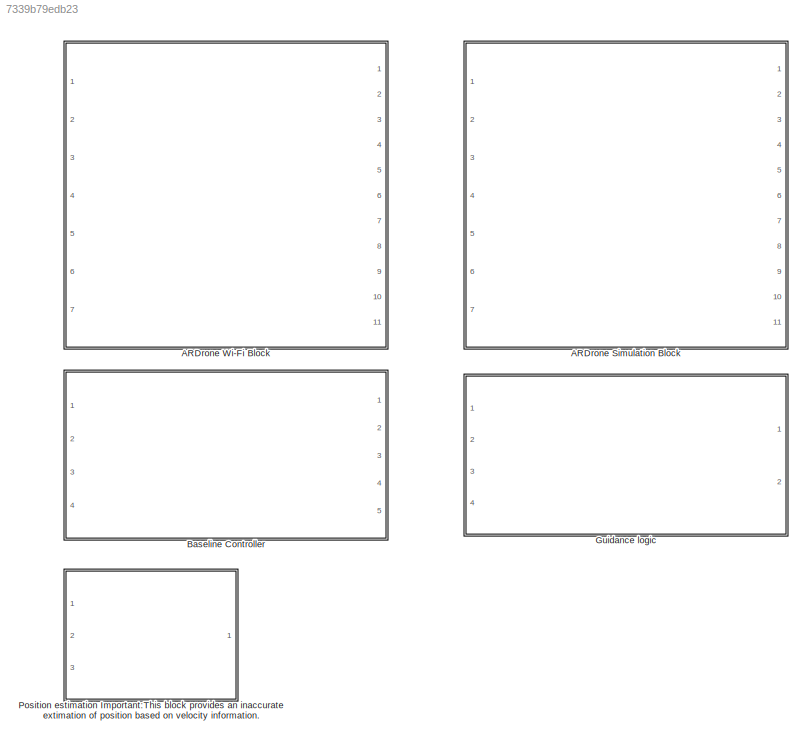
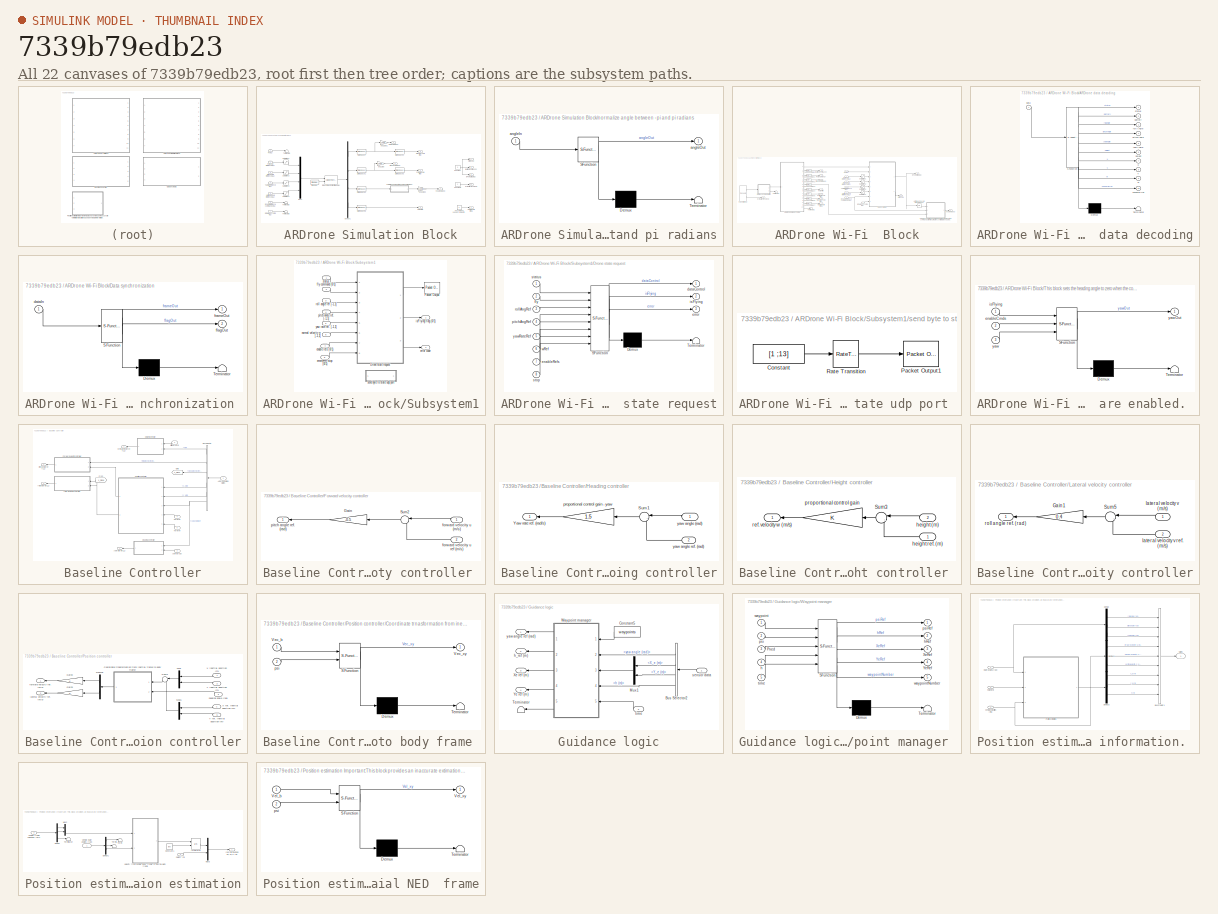
[diagram: thumbnail index - all 22 canvases of the model, root first then tree order]
MODEL slx_7339b79edb23
KIND library
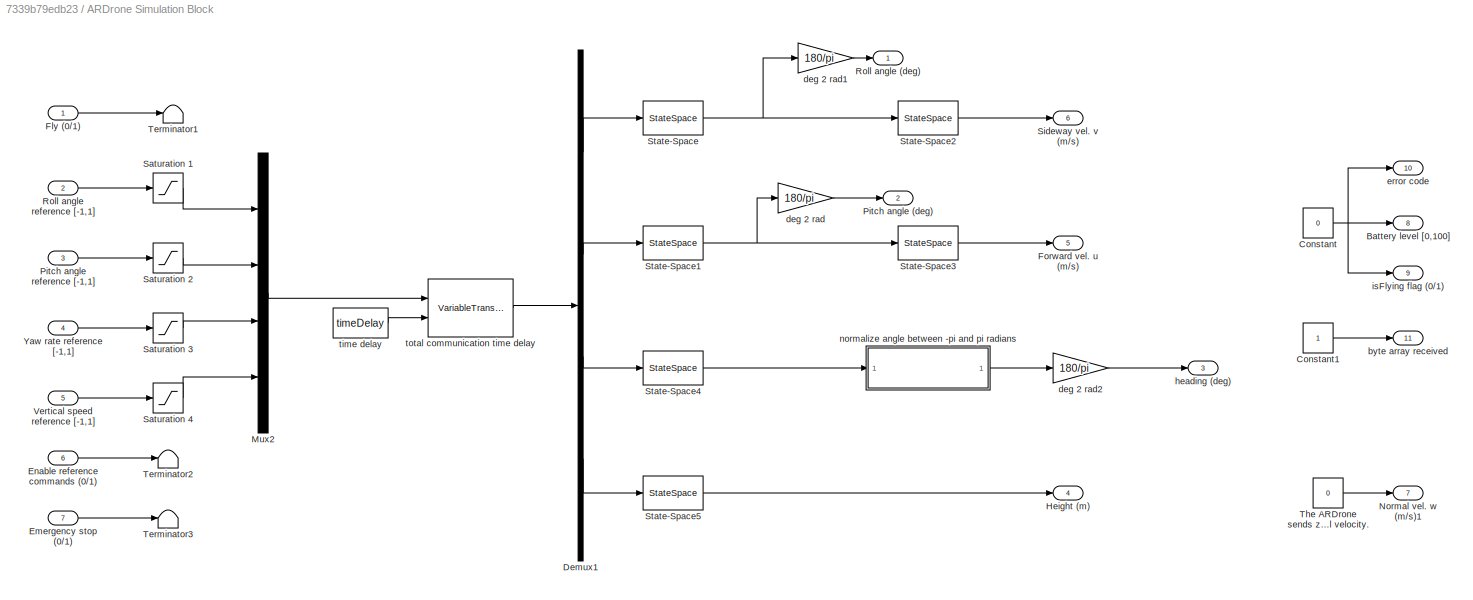
BLOCK [SubSystem] ARDrone Simulation Block
  FunctionWithSeparateData = off
  MaskHideContents = off
  MinAlgLoopOccurrences = off
  Opaque = off
  Ports = [7, 11]
  PropExecContextOutsideSubsystem = off
  RTWSystemCode = Auto
  RequestExecContextInheritance = off
BLOCK [Outport] ARDrone Simulation Block/Battery level [0,100]
  IconDisplay = Port number
  Port = 8
BLOCK [Constant] ARDrone Simulation Block/Constant
  Value = 0
BLOCK [Constant] ARDrone Simulation Block/Constant1
BLOCK [Demux] ARDrone Simulation Block/Demux1
  DisplayOption = bar
  Ports = [1, 4]
BLOCK [Inport] ARDrone Simulation Block/Emergency stop (0//1)
  IconDisplay = Port number
  Port = 7
BLOCK [Inport] ARDrone Simulation Block/Enable reference commands (0//1)
  IconDisplay = Port number
  Port = 6
BLOCK [Inport] ARDrone Simulation Block/Fly (0//1)
  IconDisplay = Port number
BLOCK [Outport] ARDrone Simulation Block/Forward vel. u (m//s)
  IconDisplay = Port number
  Port = 5
BLOCK [Outport] ARDrone Simulation Block/Height (m)
  IconDisplay = Port number
  Port = 4
BLOCK [Mux] ARDrone Simulation Block/Mux2
  DisplayOption = bar
  Ports = [4, 1]
BLOCK [Outport] ARDrone Simulation Block/Normal vel. w (m//s)1
  IconDisplay = Port number
  Port = 7
BLOCK [Outport] ARDrone Simulation Block/Pitch angle (deg)
  IconDisplay = Port number
  Port = 2
BLOCK [Inport] ARDrone Simulation Block/Pitch angle reference [-1,1]
  IconDisplay = Port number
  Port = 3
BLOCK [Outport] ARDrone Simulation Block/Roll angle (deg)
  IconDisplay = Port number
BLOCK [Inport] ARDrone Simulation Block/Roll angle reference [-1,1]
  IconDisplay = Port number
  Port = 2
BLOCK [Saturate] ARDrone Simulation Block/Saturation 1
  InputPortMap = u0
  LowerLimit = -1
  Ports = [1, 1]
  UpperLimit = 1
BLOCK [Saturate] ARDrone Simulation Block/Saturation 2
  InputPortMap = u0
  LowerLimit = -1
  Ports = [1, 1]
  UpperLimit = 1
BLOCK [Saturate] ARDrone Simulation Block/Saturation 3
  InputPortMap = u0
  LowerLimit = -1
  Ports = [1, 1]
  UpperLimit = 1
BLOCK [Saturate] ARDrone Simulation Block/Saturation 4
  InputPortMap = u0
  LowerLimit = -1
  Ports = [1, 1]
  UpperLimit = 1
BLOCK [Outport] ARDrone Simulation Block/Sideway vel. v (m//s)
  IconDisplay = Port number
  Port = 6
BLOCK [StateSpace] ARDrone Simulation Block/State-Space
  A = ssRoll.a
  B = ssRoll.b
  C = ssRoll.c
  D = ssRoll.d
  Ports = [1, 1]
  X0 = 0
BLOCK [StateSpace] ARDrone Simulation Block/State-Space1
  A = ssPitch.a
  B = ssPitch.b
  C = ssPitch.c
  D = ssPitch.d
  Ports = [1, 1]
  X0 = 0
BLOCK [StateSpace] ARDrone Simulation Block/State-Space2
  A = ssRoll2V.a
  B = ssRoll2V.b
  C = ssRoll2V.c
  D = ssRoll2V.d
  Ports = [1, 1]
  X0 = 0
BLOCK [StateSpace] ARDrone Simulation Block/State-Space3
  A = ssPitch2U.a
  B = ssPitch2U.b
  C = ssPitch2U.c
  D = ssPitch2U.d
  Ports = [1, 1]
  X0 = 0
BLOCK [StateSpace] ARDrone Simulation Block/State-Space4
  A = ssYaw.a
  B = ssYaw.b
  C = ssYaw.c
  D = ssYaw.d
  Ports = [1, 1]
  X0 = 0
BLOCK [StateSpace] ARDrone Simulation Block/State-Space5
  A = ssH.a
  B = ssH.b
  C = ssH.c
  D = ssH.d
  Ports = [1, 1]
  X0 = 0
BLOCK [Terminator] ARDrone Simulation Block/Terminator1
BLOCK [Terminator] ARDrone Simulation Block/Terminator2
BLOCK [Terminator] ARDrone Simulation Block/Terminator3
BLOCK [Constant] ARDrone Simulation Block/The ARDrone sends zero for the vertical velocity. 
  Value = 0
BLOCK [Inport] ARDrone Simulation Block/Vertical speed reference [-1,1]
  IconDisplay = Port number
  Port = 5
BLOCK [Inport] ARDrone Simulation Block/Yaw rate reference [-1,1]
  IconDisplay = Port number
  Port = 4
BLOCK [Outport] ARDrone Simulation Block/byte array received
  IconDisplay = Port number
  Port = 11
BLOCK [Gain] ARDrone Simulation Block/deg 2 rad
  Gain = 180/pi
  OutDataTypeStr = Inherit: Inherit via internal rule
  ParamDataTypeStr = Inherit: Inherit via internal rule
  SaturateOnIntegerOverflow = off
BLOCK [Gain] ARDrone Simulation Block/deg 2 rad1
  Gain = 180/pi
  OutDataTypeStr = Inherit: Inherit via internal rule
  ParamDataTypeStr = Inherit: Inherit via internal rule
  SaturateOnIntegerOverflow = off
BLOCK [Gain] ARDrone Simulation Block/deg 2 rad2
  Gain = 180/pi
  OutDataTypeStr = Inherit: Inherit via internal rule
  ParamDataTypeStr = Inherit: Inherit via internal rule
  SaturateOnIntegerOverflow = off
BLOCK [Outport] ARDrone Simulation Block/error code
  IconDisplay = Port number
  Port = 10
BLOCK [Outport] ARDrone Simulation Block/heading  (deg)
  IconDisplay = Port number
  Port = 3
BLOCK [Outport] ARDrone Simulation Block/isFlying flag (0//1)
  IconDisplay = Port number
  Port = 9
BLOCK [SubSystem] ARDrone Simulation Block/normalize angle between -pi and pi radians
  ErrorFcn = Stateflow.Translate.translate
  FunctionWithSeparateData = off
  MaskHideContents = off
  MinAlgLoopOccurrences = off
  Opaque = off
  PermitHierarchicalResolution = ExplicitOnly
  Ports = [1, 1]
  PropExecContextOutsideSubsystem = off
  RTWSystemCode = Auto
  RequestExecContextInheritance = off
  SFBlockType = MATLAB Function
  TreatAsAtomicUnit = on
BLOCK [Demux] ARDrone Simulation Block/normalize angle between -pi and pi radians/ Demux 
  Outputs = 1
  Ports = [1, 1]
BLOCK [S-Function] ARDrone Simulation Block/normalize angle between -pi and pi radians/ SFunction 
  EnableBusSupport = on
  FunctionName = sf_sfun
  PortCounts = [1 2]
  Ports = [1, 2]
  Tag = Stateflow S-Function ARBlocks 5
BLOCK [Terminator] ARDrone Simulation Block/normalize angle between -pi and pi radians/ Terminator 
BLOCK [Inport] ARDrone Simulation Block/normalize angle between -pi and pi radians/angleIn
  IconDisplay = Port number
BLOCK [Outport] ARDrone Simulation Block/normalize angle between -pi and pi radians/angleOut
  IconDisplay = Port number
BLOCK [Constant] ARDrone Simulation Block/time delay
  Value = timeDelay
BLOCK [VariableTransportDelay] ARDrone Simulation Block/total communication time delay
  InitialOutput = [0 0 0 0]
  MaximumDelay = 10
  MaximumPoints = 4096
  Ports = [2, 1]
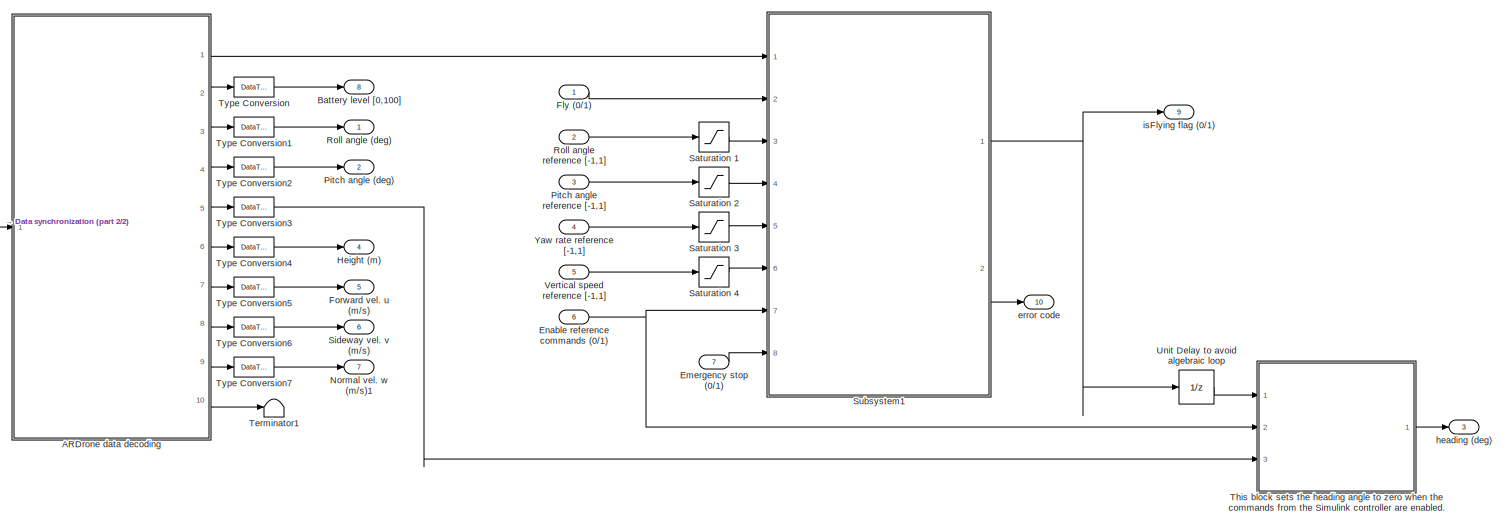
[diagram: ARDrone Wi-Fi  Block - part 1/2, most of the canvas]
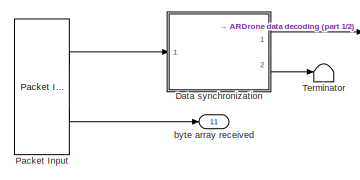
[diagram: ARDrone Wi-Fi  Block - part 2/2, middle left region]
BLOCK [SubSystem] ARDrone Wi-Fi  Block
  FunctionWithSeparateData = off
  MaskHideContents = off
  MinAlgLoopOccurrences = off
  Opaque = off
  Ports = [7, 11]
  PropExecContextOutsideSubsystem = off
  RTWSystemCode = Auto
  RequestExecContextInheritance = off
BLOCK [SubSystem] ARDrone Wi-Fi  Block/ARDrone data decoding
  ErrorFcn = Stateflow.Translate.translate
  FunctionWithSeparateData = off
  MaskHideContents = off
  MinAlgLoopOccurrences = off
  Opaque = off
  PermitHierarchicalResolution = ExplicitOnly
  Ports = [1, 10]
  PropExecContextOutsideSubsystem = off
  RTWSystemCode = Auto
  RequestExecContextInheritance = off
  SFBlockType = MATLAB Function
  TreatAsAtomicUnit = on
BLOCK [Demux] ARDrone Wi-Fi  Block/ARDrone data decoding/ Demux 
  Outputs = 1
  Ports = [1, 1]
BLOCK [S-Function] ARDrone Wi-Fi  Block/ARDrone data decoding/ SFunction 
  EnableBusSupport = on
  FunctionName = sf_sfun
  PortCounts = [1 11]
  Ports = [1, 11]
  Tag = Stateflow S-Function ARBlocks 2
BLOCK [Terminator] ARDrone Wi-Fi  Block/ARDrone data decoding/ Terminator 
BLOCK [Outport] ARDrone Wi-Fi  Block/ARDrone data decoding/battery
  IconDisplay = Port number
  Port = 2
BLOCK [Outport] ARDrone Wi-Fi  Block/ARDrone data decoding/cksumError
  IconDisplay = Port number
  Port = 10
BLOCK [Inport] ARDrone Wi-Fi  Block/ARDrone data decoding/data
  IconDisplay = Port number
BLOCK [Outport] ARDrone Wi-Fi  Block/ARDrone data decoding/height
  IconDisplay = Port number
  Port = 6
BLOCK [Outport] ARDrone Wi-Fi  Block/ARDrone data decoding/pitchAngle
  IconDisplay = Port number
  Port = 4
BLOCK [Outport] ARDrone Wi-Fi  Block/ARDrone data decoding/rollAngle
  IconDisplay = Port number
  Port = 3
BLOCK [Outport] ARDrone Wi-Fi  Block/ARDrone data decoding/status
  IconDisplay = Port number
BLOCK [Outport] ARDrone Wi-Fi  Block/ARDrone data decoding/u
  IconDisplay = Port number
  Port = 7
BLOCK [Outport] ARDrone Wi-Fi  Block/ARDrone data decoding/v
  IconDisplay = Port number
  Port = 8
BLOCK [Outport] ARDrone Wi-Fi  Block/ARDrone data decoding/w
  IconDisplay = Port number
  Port = 9
BLOCK [Outport] ARDrone Wi-Fi  Block/ARDrone data decoding/yawAngle
  IconDisplay = Port number
  Port = 5
BLOCK [Outport] ARDrone Wi-Fi  Block/Battery level [0,100]
  IconDisplay = Port number
  Port = 8
BLOCK [SubSystem] ARDrone Wi-Fi  Block/Data synchronization 
  ErrorFcn = Stateflow.Translate.translate
  FunctionWithSeparateData = off
  MaskHideContents = off
  MinAlgLoopOccurrences = off
  Opaque = off
  PermitHierarchicalResolution = ExplicitOnly
  Ports = [1, 2]
  PropExecContextOutsideSubsystem = off
  RTWSystemCode = Auto
  RequestExecContextInheritance = off
  SFBlockType = MATLAB Function
  TreatAsAtomicUnit = on
BLOCK [Demux] ARDrone Wi-Fi  Block/Data synchronization / Demux 
  Outputs = 1
  Ports = [1, 1]
BLOCK [S-Function] ARDrone Wi-Fi  Block/Data synchronization / SFunction 
  EnableBusSupport = on
  FunctionName = sf_sfun
  PortCounts = [1 3]
  Ports = [1, 3]
  Tag = Stateflow S-Function ARBlocks 3
BLOCK [Terminator] ARDrone Wi-Fi  Block/Data synchronization / Terminator 
BLOCK [Inport] ARDrone Wi-Fi  Block/Data synchronization /dataIn
  IconDisplay = Port number
BLOCK [Outport] ARDrone Wi-Fi  Block/Data synchronization /flagOut
  IconDisplay = Port number
  Port = 2
BLOCK [Outport] ARDrone Wi-Fi  Block/Data synchronization /frameOut
  IconDisplay = Port number
BLOCK [Inport] ARDrone Wi-Fi  Block/Emergency stop (0//1)
  IconDisplay = Port number
  Port = 7
BLOCK [Inport] ARDrone Wi-Fi  Block/Enable reference commands (0//1)
  IconDisplay = Port number
  Port = 6
BLOCK [Inport] ARDrone Wi-Fi  Block/Fly (0//1)
  IconDisplay = Port number
BLOCK [Outport] ARDrone Wi-Fi  Block/Forward vel. u (m//s)
  IconDisplay = Port number
  Port = 5
BLOCK [Outport] ARDrone Wi-Fi  Block/Height (m)
  IconDisplay = Port number
  Port = 4
BLOCK [Outport] ARDrone Wi-Fi  Block/Normal vel. w (m//s)1
  IconDisplay = Port number
  Port = 7
BLOCK [Reference] ARDrone Wi-Fi  Block/Packet Input  REF=rtwinlib/Packet Input
  AttributesFormatString = Standard Devices\nUDP Protocol [15B2h]
  ByteOrder = 1
  DataTypes = '500*uint8'
  DrvAddress = 5554
  DrvName = Standard_Devices/UDP_Protocol
  DrvOptions = [3232235777 5554]
  MaxMissedTicks = 1
  PacketID = 1
  PacketSize = 500
  Ports = [0, 2]
  SampleTime = sampleTime
  ShowError = off
  ShowMissedTicks = off
  ShowReady = on
  ShowTimestamp = off
  SourceBlock = rtwinlib/Packet Input
  SourceType = RTWin Packet Input
  YieldWhenWaiting = off
BLOCK [Outport] ARDrone Wi-Fi  Block/Pitch angle (deg)
  IconDisplay = Port number
  Port = 2
BLOCK [Inport] ARDrone Wi-Fi  Block/Pitch angle reference [-1,1]
  IconDisplay = Port number
  Port = 3
BLOCK [Outport] ARDrone Wi-Fi  Block/Roll angle (deg)
  IconDisplay = Port number
BLOCK [Inport] ARDrone Wi-Fi  Block/Roll angle reference [-1,1]
  IconDisplay = Port number
  Port = 2
BLOCK [Saturate] ARDrone Wi-Fi  Block/Saturation 1
  InputPortMap = u0
  LowerLimit = -1
  Ports = [1, 1]
  UpperLimit = 1
BLOCK [Saturate] ARDrone Wi-Fi  Block/Saturation 2
  InputPortMap = u0
  LowerLimit = -1
  Ports = [1, 1]
  UpperLimit = 1
BLOCK [Saturate] ARDrone Wi-Fi  Block/Saturation 3
  InputPortMap = u0
  LowerLimit = -1
  Ports = [1, 1]
  UpperLimit = 1
BLOCK [Saturate] ARDrone Wi-Fi  Block/Saturation 4
  InputPortMap = u0
  LowerLimit = -1
  Ports = [1, 1]
  UpperLimit = 1
BLOCK [Outport] ARDrone Wi-Fi  Block/Sideway vel. v (m//s)
  IconDisplay = Port number
  Port = 6
BLOCK [SubSystem] ARDrone Wi-Fi  Block/Subsystem1
  FunctionWithSeparateData = off
  MaskHideContents = off
  MinAlgLoopOccurrences = off
  Opaque = off
  Ports = [8, 2]
  PropExecContextOutsideSubsystem = off
  RTWSystemCode = Auto
  RequestExecContextInheritance = off
BLOCK [SubSystem] ARDrone Wi-Fi  Block/Subsystem1/Drone state request
  ErrorFcn = Stateflow.Translate.translate
  FunctionWithSeparateData = off
  MaskHideContents = off
  MinAlgLoopOccurrences = off
  Opaque = off
  PermitHierarchicalResolution = ExplicitOnly
  Ports = [8, 3]
  PropExecContextOutsideSubsystem = off
  RTWSystemCode = Auto
  RequestExecContextInheritance = off
  SFBlockType = MATLAB Function
  TreatAsAtomicUnit = on
BLOCK [Demux] ARDrone Wi-Fi  Block/Subsystem1/Drone state request/ Demux 
  Outputs = 1
  Ports = [1, 1]
BLOCK [S-Function] ARDrone Wi-Fi  Block/Subsystem1/Drone state request/ SFunction 
  EnableBusSupport = on
  FunctionName = sf_sfun
  PortCounts = [8 4]
  Ports = [8, 4]
  Tag = Stateflow S-Function ARBlocks 1
BLOCK [Terminator] ARDrone Wi-Fi  Block/Subsystem1/Drone state request/ Terminator 
BLOCK [Outport] ARDrone Wi-Fi  Block/Subsystem1/Drone state request/dataControl
  IconDisplay = Port number
BLOCK [Inport] ARDrone Wi-Fi  Block/Subsystem1/Drone state request/enableRefs
  IconDisplay = Port number
  Port = 7
BLOCK [Outport] ARDrone Wi-Fi  Block/Subsystem1/Drone state request/error
  IconDisplay = Port number
  Port = 3
BLOCK [Inport] ARDrone Wi-Fi  Block/Subsystem1/Drone state request/fly
  IconDisplay = Port number
  Port = 2
BLOCK [Outport] ARDrone Wi-Fi  Block/Subsystem1/Drone state request/isFlying
  IconDisplay = Port number
  Port = 2
BLOCK [Inport] ARDrone Wi-Fi  Block/Subsystem1/Drone state request/pitchAngRef
  IconDisplay = Port number
  Port = 4
BLOCK [Inport] ARDrone Wi-Fi  Block/Subsystem1/Drone state request/rollAngRef
  IconDisplay = Port number
  Port = 3
BLOCK [Inport] ARDrone Wi-Fi  Block/Subsystem1/Drone state request/status
  IconDisplay = Port number
BLOCK [Inport] ARDrone Wi-Fi  Block/Subsystem1/Drone state request/stop
  IconDisplay = Port number
  Port = 8
BLOCK [Inport] ARDrone Wi-Fi  Block/Subsystem1/Drone state request/wRef
  IconDisplay = Port number
  Port = 6
BLOCK [Inport] ARDrone Wi-Fi  Block/Subsystem1/Drone state request/yawRateRef
  IconDisplay = Port number
  Port = 5
BLOCK [Reference] ARDrone Wi-Fi  Block/Subsystem1/Packet Output  REF=rtwinlib/Packet Output
  AttributesFormatString = Standard Devices\nUDP Protocol [15B4h]
  ByteOrder = 1
  DataTypes = '150*uint8'
  DrvAddress = 5556
  DrvName = Standard_Devices/UDP_Protocol
  DrvOptions = [3232235777 5556]
  FinalValue = []
  InitialValue = []
  MaxMissedTicks = 10
  PacketID = 1
  PacketSize = 150
  Ports = [1]
  SampleTime = -1
  ShowError = off
  ShowMissedTicks = off
  ShowReady = off
  SourceBlock = rtwinlib/Packet Output
  SourceType = RTWin Packet Output
  YieldWhenWaiting = off
BLOCK [Inport] ARDrone Wi-Fi  Block/Subsystem1/emergency stop (0//1)
  IconDisplay = Port number
  Port = 8
BLOCK [Inport] ARDrone Wi-Fi  Block/Subsystem1/enable refs (0//1)
  IconDisplay = Port number
  Port = 7
BLOCK [Outport] ARDrone Wi-Fi  Block/Subsystem1/error code
  IconDisplay = Port number
  Port = 2
BLOCK [Inport] ARDrone Wi-Fi  Block/Subsystem1/fly command (0//1)
  IconDisplay = Port number
  Port = 2
BLOCK [Outport] ARDrone Wi-Fi  Block/Subsystem1/isFlying flag (0//1)
  IconDisplay = Port number
BLOCK [Inport] ARDrone Wi-Fi  Block/Subsystem1/normal velocity w [-1,1]
  IconDisplay = Port number
  Port = 6
BLOCK [Inport] ARDrone Wi-Fi  Block/Subsystem1/pitch angle ref. [-1,1]
  IconDisplay = Port number
  Port = 4
BLOCK [Inport] ARDrone Wi-Fi  Block/Subsystem1/roll angle ref [-1,1]
  IconDisplay = Port number
  Port = 3
BLOCK [SubSystem] ARDrone Wi-Fi  Block/Subsystem1/send byte to state udp port 
  FunctionWithSeparateData = off
  MaskHideContents = off
  MinAlgLoopOccurrences = off
  Opaque = off
  Ports = []
  PropExecContextOutsideSubsystem = off
  RTWSystemCode = Auto
  RequestExecContextInheritance = off
BLOCK [Constant] ARDrone Wi-Fi  Block/Subsystem1/send byte to state udp port /Constant
  OutDataTypeStr = uint8
  Value = [1 ;13]
BLOCK [Reference] ARDrone Wi-Fi  Block/Subsystem1/send byte to state udp port /Packet Output1  REF=rtwinlib/Packet Output
  AttributesFormatString = Standard Devices\nUDP Protocol [15B2h]
  ByteOrder = 1
  DataTypes = '2*uint8'
  DrvAddress = 5554
  DrvName = Standard_Devices/UDP_Protocol
  DrvOptions = [3232235777 5554]
  FinalValue = []
  InitialValue = []
  MaxMissedTicks = 10
  PacketID = 1
  PacketSize = 2
  Ports = [1]
  SampleTime = sampleTime*10
  ShowError = off
  ShowMissedTicks = off
  ShowReady = off
  SourceBlock = rtwinlib/Packet Output
  SourceType = RTWin Packet Output
  YieldWhenWaiting = off
BLOCK [RateTransition] ARDrone Wi-Fi  Block/Subsystem1/send byte to state udp port /Rate Transition
  OutPortSampleTime = sampleTime*10
BLOCK [Inport] ARDrone Wi-Fi  Block/Subsystem1/status
  IconDisplay = Port number
BLOCK [Inport] ARDrone Wi-Fi  Block/Subsystem1/yaw rate ref. [-1,1]
  IconDisplay = Port number
  Port = 5
BLOCK [Terminator] ARDrone Wi-Fi  Block/Terminator
BLOCK [Terminator] ARDrone Wi-Fi  Block/Terminator1
BLOCK [SubSystem] ARDrone Wi-Fi  Block/This block sets the heading angle to zero when the commands from the Simulink controller are enabled. 
  ErrorFcn = Stateflow.Translate.translate
  FunctionWithSeparateData = off
  MaskHideContents = off
  MinAlgLoopOccurrences = off
  Opaque = off
  PermitHierarchicalResolution = ExplicitOnly
  Ports = [3, 1]
  PropExecContextOutsideSubsystem = off
  RTWSystemCode = Auto
  RequestExecContextInheritance = off
  SFBlockType = MATLAB Function
  TreatAsAtomicUnit = on
BLOCK [Demux] ARDrone Wi-Fi  Block/This block sets the heading angle to zero when the commands from the Simulink controller are enabled. / Demux 
  Outputs = 1
  Ports = [1, 1]
BLOCK [S-Function] ARDrone Wi-Fi  Block/This block sets the heading angle to zero when the commands from the Simulink controller are enabled. / SFunction 
  EnableBusSupport = on
  FunctionName = sf_sfun
  PortCounts = [3 2]
  Ports = [3, 2]
  Tag = Stateflow S-Function ARBlocks 4
BLOCK [Terminator] ARDrone Wi-Fi  Block/This block sets the heading angle to zero when the commands from the Simulink controller are enabled. / Terminator 
BLOCK [Inport] ARDrone Wi-Fi  Block/This block sets the heading angle to zero when the commands from the Simulink controller are enabled. /enableCmds
  IconDisplay = Port number
  Port = 2
BLOCK [Inport] ARDrone Wi-Fi  Block/This block sets the heading angle to zero when the commands from the Simulink controller are enabled. /isFlying
  IconDisplay = Port number
BLOCK [Inport] ARDrone Wi-Fi  Block/This block sets the heading angle to zero when the commands from the Simulink controller are enabled. /yaw
  IconDisplay = Port number
  Port = 3
BLOCK [Outport] ARDrone Wi-Fi  Block/This block sets the heading angle to zero when the commands from the Simulink controller are enabled. /yawOut
  IconDisplay = Port number
BLOCK [DataTypeConversion] ARDrone Wi-Fi  Block/Type Conversion
  OutDataTypeStr = double
  RndMeth = Floor
  SaturateOnIntegerOverflow = off
BLOCK [DataTypeConversion] ARDrone Wi-Fi  Block/Type Conversion1
  OutDataTypeStr = double
  RndMeth = Floor
  SaturateOnIntegerOverflow = off
BLOCK [DataTypeConversion] ARDrone Wi-Fi  Block/Type Conversion2
  OutDataTypeStr = double
  RndMeth = Floor
  SaturateOnIntegerOverflow = off
BLOCK [DataTypeConversion] ARDrone Wi-Fi  Block/Type Conversion3
  OutDataTypeStr = double
  RndMeth = Floor
  SaturateOnIntegerOverflow = off
BLOCK [DataTypeConversion] ARDrone Wi-Fi  Block/Type Conversion4
  OutDataTypeStr = double
  RndMeth = Floor
  SaturateOnIntegerOverflow = off
BLOCK [DataTypeConversion] ARDrone Wi-Fi  Block/Type Conversion5
  OutDataTypeStr = double
  RndMeth = Floor
  SaturateOnIntegerOverflow = off
BLOCK [DataTypeConversion] ARDrone Wi-Fi  Block/Type Conversion6
  OutDataTypeStr = double
  RndMeth = Floor
  SaturateOnIntegerOverflow = off
BLOCK [DataTypeConversion] ARDrone Wi-Fi  Block/Type Conversion7
  OutDataTypeStr = double
  RndMeth = Floor
  SaturateOnIntegerOverflow = off
BLOCK [UnitDelay] ARDrone Wi-Fi  Block/Unit Delay to avoid algebraic loop
  InputProcessing = Elements as channels (sample based)
  SampleTime = -1
BLOCK [Inport] ARDrone Wi-Fi  Block/Vertical speed reference [-1,1]
  IconDisplay = Port number
  Port = 5
BLOCK [Inport] ARDrone Wi-Fi  Block/Yaw rate reference [-1,1]
  IconDisplay = Port number
  Port = 4
BLOCK [Outport] ARDrone Wi-Fi  Block/byte array received
  IconDisplay = Port number
  Port = 11
BLOCK [Outport] ARDrone Wi-Fi  Block/error code
  IconDisplay = Port number
  Port = 10
BLOCK [Outport] ARDrone Wi-Fi  Block/heading  (deg)
  IconDisplay = Port number
  Port = 3
BLOCK [Outport] ARDrone Wi-Fi  Block/isFlying flag (0//1)
  IconDisplay = Port number
  Port = 9
BLOCK [SubSystem] Baseline Controller
  FunctionWithSeparateData = off
  MaskHideContents = off
  MinAlgLoopOccurrences = off
  Opaque = off
  Ports = [5, 4]
  PropExecContextOutsideSubsystem = off
  RTWSystemCode = Auto
  RequestExecContextInheritance = off
BLOCK [Inport] Baseline Controller/ARDrone states  states 
  IconDisplay = Port number
BLOCK [BusSelector] Baseline Controller/Bus Selector
  OutputSignals = h (m),forward velocity- u (m/s),sideward velocity - v (m/s),X_e (m),Y_e (m),yaw angle (rad)
  Ports = [1, 6]
BLOCK [SubSystem] Baseline Controller/Forward velocity controller 
  FunctionWithSeparateData = off
  MaskHideContents = off
  MinAlgLoopOccurrences = off
  Opaque = off
  Ports = [2, 1]
  PropExecContextOutsideSubsystem = off
  RTWSystemCode = Auto
  RequestExecContextInheritance = off
BLOCK [Gain] Baseline Controller/Forward velocity controller /Gain
  Gain = -0.5
  OutDataTypeStr = Inherit: Inherit via internal rule
  ParamDataTypeStr = Inherit: Inherit via internal rule
  SaturateOnIntegerOverflow = off
BLOCK [Sum] Baseline Controller/Forward velocity controller /Sum2
  IconShape = round
  InputSameDT = off
  Inputs = |-+
  OutDataTypeStr = Inherit: Inherit via internal rule
  Ports = [2, 1]
  SaturateOnIntegerOverflow = off
BLOCK [Inport] Baseline Controller/Forward velocity controller /forward velocity u (m//s)
  IconDisplay = Port number
BLOCK [Inport] Baseline Controller/Forward velocity controller /forward velocity u ref (m//s)
  IconDisplay = Port number
  Port = 2
BLOCK [Outport] Baseline Controller/Forward velocity controller /pitch angle ref. (rad)
  IconDisplay = Port number
BLOCK [From] Baseline Controller/From
  GotoTag = v_meas
BLOCK [Goto] Baseline Controller/Goto
  GotoTag = v_meas
BLOCK [SubSystem] Baseline Controller/Heading controller
  FunctionWithSeparateData = off
  MaskHideContents = off
  MinAlgLoopOccurrences = off
  Opaque = off
  Ports = [2, 1]
  PropExecContextOutsideSubsystem = off
  RTWSystemCode = Auto
  RequestExecContextInheritance = off
BLOCK [Sum] Baseline Controller/Heading controller/Sum1
  IconShape = round
  InputSameDT = off
  Inputs = |-+
  OutDataTypeStr = Inherit: Inherit via internal rule
  Ports = [2, 1]
  SaturateOnIntegerOverflow = off
BLOCK [Outport] Baseline Controller/Heading controller/Yaw rate ref. (rad//s)
  IconDisplay = Port number
BLOCK [Gain] Baseline Controller/Heading controller/proportional control gain - yaw
  Gain = 1.5
  OutDataTypeStr = Inherit: Inherit via internal rule
  ParamDataTypeStr = Inherit: Inherit via internal rule
  SaturateOnIntegerOverflow = off
BLOCK [Inport] Baseline Controller/Heading controller/yaw angle (rad)
  IconDisplay = Port number
BLOCK [Inport] Baseline Controller/Heading controller/yaw angle ref. (rad)
  IconDisplay = Port number
  Port = 2
BLOCK [SubSystem] Baseline Controller/Height controller 
  FunctionWithSeparateData = off
  MaskHideContents = off
  MinAlgLoopOccurrences = off
  Opaque = off
  Ports = [2, 1]
  PropExecContextOutsideSubsystem = off
  RTWSystemCode = Auto
  RequestExecContextInheritance = off
BLOCK [Sum] Baseline Controller/Height controller /Sum3
  IconShape = round
  InputSameDT = off
  Inputs = |-+
  OutDataTypeStr = Inherit: Inherit via internal rule
  Ports = [2, 1]
  SaturateOnIntegerOverflow = off
BLOCK [Inport] Baseline Controller/Height controller /height (m)
  IconDisplay = Port number
  Port = 2
BLOCK [Inport] Baseline Controller/Height controller /height ref. (m)
  IconDisplay = Port number
BLOCK [Gain] Baseline Controller/Height controller /proportional control gain
  OutDataTypeStr = Inherit: Inherit via internal rule
  ParamDataTypeStr = Inherit: Inherit via internal rule
  SaturateOnIntegerOverflow = off
BLOCK [Outport] Baseline Controller/Height controller /ref. velocity w (m//s)
  IconDisplay = Port number
BLOCK [SubSystem] Baseline Controller/Lateral velocity controller
  FunctionWithSeparateData = off
  MaskHideContents = off
  MinAlgLoopOccurrences = off
  Opaque = off
  Ports = [2, 1]
  PropExecContextOutsideSubsystem = off
  RTWSystemCode = Auto
  RequestExecContextInheritance = off
BLOCK [Gain] Baseline Controller/Lateral velocity controller/Gain1
  Gain = 0.4
  OutDataTypeStr = Inherit: Inherit via internal rule
  ParamDataTypeStr = Inherit: Inherit via internal rule
  SaturateOnIntegerOverflow = off
BLOCK [Sum] Baseline Controller/Lateral velocity controller/Sum5
  IconShape = round
  InputSameDT = off
  Inputs = |-+
  OutDataTypeStr = Inherit: Inherit via internal rule
  Ports = [2, 1]
  SaturateOnIntegerOverflow = off
BLOCK [Inport] Baseline Controller/Lateral velocity controller/lateral velocity v (m//s)
  IconDisplay = Port number
BLOCK [Inport] Baseline Controller/Lateral velocity controller/lateral velocity v ref. (m//s)
  IconDisplay = Port number
  Port = 2
BLOCK [Outport] Baseline Controller/Lateral velocity controller/roll angle ref. (rad)
  IconDisplay = Port number
BLOCK [SubSystem] Baseline Controller/Position controller
  FunctionWithSeparateData = off
  MaskHideContents = off
  MinAlgLoopOccurrences = off
  Opaque = off
  Ports = [5, 2]
  PropExecContextOutsideSubsystem = off
  RTWSystemCode = Auto
  RequestExecContextInheritance = off
BLOCK [SubSystem] Baseline Controller/Position controller/Coordinate trnasformation from inertial frame to body frame 
  ErrorFcn = Stateflow.Translate.translate
  FunctionWithSeparateData = off
  MaskHideContents = off
  MinAlgLoopOccurrences = off
  Opaque = off
  PermitHierarchicalResolution = ExplicitOnly
  Ports = [2, 1]
  PropExecContextOutsideSubsystem = off
  RTWSystemCode = Auto
  RequestExecContextInheritance = off
  SFBlockType = MATLAB Function
  TreatAsAtomicUnit = on
BLOCK [Demux] Baseline Controller/Position controller/Coordinate trnasformation from inertial frame to body frame / Demux 
  Outputs = 1
  Ports = [1, 1]
BLOCK [S-Function] Baseline Controller/Position controller/Coordinate trnasformation from inertial frame to body frame / SFunction 
  EnableBusSupport = on
  FunctionName = sf_sfun
  PortCounts = [2 2]
  Ports = [2, 2]
  Tag = Stateflow S-Function ARBlocks 7
BLOCK [Terminator] Baseline Controller/Position controller/Coordinate trnasformation from inertial frame to body frame / Terminator 
BLOCK [Inport] Baseline Controller/Position controller/Coordinate trnasformation from inertial frame to body frame /Vec_b
  IconDisplay = Port number
BLOCK [Outport] Baseline Controller/Position controller/Coordinate trnasformation from inertial frame to body frame /Vec_xy
  IconDisplay = Port number
BLOCK [Inport] Baseline Controller/Position controller/Coordinate trnasformation from inertial frame to body frame /psi
  IconDisplay = Port number
  Port = 2
BLOCK [Demux] Baseline Controller/Position controller/Demux
  DisplayOption = bar
  Outputs = 2
  Ports = [1, 2]
BLOCK [Gain] Baseline Controller/Position controller/Gain2
  OutDataTypeStr = Inherit: Inherit via internal rule
  ParamDataTypeStr = Inherit: Inherit via internal rule
  SaturateOnIntegerOverflow = off
BLOCK [Gain] Baseline Controller/Position controller/Gain3
  OutDataTypeStr = Inherit: Inherit via internal rule
  ParamDataTypeStr = Inherit: Inherit via internal rule
  SaturateOnIntegerOverflow = off
BLOCK [Mux] Baseline Controller/Position controller/Mux
  DisplayOption = bar
  Inputs = 2
  Ports = [2, 1]
BLOCK [Mux] Baseline Controller/Position controller/Mux1
  DisplayOption = bar
  Inputs = 2
  Ports = [2, 1]
BLOCK [Sum] Baseline Controller/Position controller/Sum4
  IconShape = round
  InputSameDT = off
  Inputs = |-+
  OutDataTypeStr = Inherit: Inherit via internal rule
  Ports = [2, 1]
  SaturateOnIntegerOverflow = off
BLOCK [Inport] Baseline Controller/Position controller/X inertial position (m)
  IconDisplay = Port number
BLOCK [Inport] Baseline Controller/Position controller/X ref. inertial position (m)
  IconDisplay = Port number
  Port = 4
BLOCK [Inport] Baseline Controller/Position controller/Y inertial position (m)
  IconDisplay = Port number
  Port = 2
BLOCK [Inport] Baseline Controller/Position controller/Y ref. inertial position (m)
  IconDisplay = Port number
  Port = 5
BLOCK [Outport] Baseline Controller/Position controller/forward velocity ref. (m//s)
  IconDisplay = Port number
BLOCK [Inport] Baseline Controller/Position controller/heading angle (rad)
  IconDisplay = Port number
  Port = 3
BLOCK [Outport] Baseline Controller/Position controller/lateral velocity ref. (m//s)
  IconDisplay = Port number
  Port = 2
BLOCK [Inport] Baseline Controller/Xe ref (m)
  IconDisplay = Port number
  Port = 4
BLOCK [Inport] Baseline Controller/Ye ref (m)
  IconDisplay = Port number
  Port = 5
BLOCK [Inport] Baseline Controller/altitude ref. (m)
  IconDisplay = Port number
  Port = 3
BLOCK [Outport] Baseline Controller/pitch angle ref. [-1,1]
  IconDisplay = Port number
  Port = 3
BLOCK [Outport] Baseline Controller/roll angle ref. [-1,1]
  IconDisplay = Port number
  Port = 4
BLOCK [Outport] Baseline Controller/vertical velocity ref. [-1,1]
  IconDisplay = Port number
BLOCK [Outport] Baseline Controller/yaw rate ref [-1,1]
  IconDisplay = Port number
  Port = 2
BLOCK [Inport] Baseline Controller/yaw ref. (rad)
  IconDisplay = Port number
  Port = 2
BLOCK [SubSystem] Guidance logic
  FunctionWithSeparateData = off
  MaskHideContents = off
  MinAlgLoopOccurrences = off
  Opaque = off
  Ports = [2, 4]
  PropExecContextOutsideSubsystem = off
  RTWSystemCode = Auto
  RequestExecContextInheritance = off
BLOCK [BusSelector] Guidance logic/Bus Selector2
  OutputSignals = yaw angle (rad),X_e (m),Y_e (m),h (m)
  Ports = [1, 4]
BLOCK [Constant] Guidance logic/Constant5
  Value = waypoints
  VectorParams1D = off
BLOCK [Mux] Guidance logic/Mux1
  DisplayOption = bar
  Inputs = 2
  Ports = [2, 1]
BLOCK [Terminator] Guidance logic/Terminator
BLOCK [SubSystem] Guidance logic/Waypoint manager 
  ErrorFcn = Stateflow.Translate.translate
  FunctionWithSeparateData = off
  MaskHideContents = off
  MinAlgLoopOccurrences = off
  Opaque = off
  PermitHierarchicalResolution = ExplicitOnly
  Ports = [5, 5]
  PropExecContextOutsideSubsystem = off
  RTWSystemCode = Auto
  RequestExecContextInheritance = off
  SFBlockType = MATLAB Function
  TreatAsAtomicUnit = on
BLOCK [Demux] Guidance logic/Waypoint manager / Demux 
  Outputs = 1
  Ports = [1, 1]
BLOCK [S-Function] Guidance logic/Waypoint manager / SFunction 
  EnableBusSupport = on
  FunctionName = sf_sfun
  PortCounts = [5 6]
  Ports = [5, 6]
  Tag = Stateflow S-Function ARBlocks 9
BLOCK [Terminator] Guidance logic/Waypoint manager / Terminator 
BLOCK [Inport] Guidance logic/Waypoint manager /Pned
  IconDisplay = Port number
  Port = 3
BLOCK [Outport] Guidance logic/Waypoint manager /XeRef
  IconDisplay = Port number
  Port = 3
BLOCK [Outport] Guidance logic/Waypoint manager /YeRef
  IconDisplay = Port number
  Port = 4
BLOCK [Inport] Guidance logic/Waypoint manager /h
  IconDisplay = Port number
  Port = 4
BLOCK [Outport] Guidance logic/Waypoint manager /hRef
  IconDisplay = Port number
  Port = 2
BLOCK [Inport] Guidance logic/Waypoint manager /psi
  IconDisplay = Port number
  Port = 2
BLOCK [Outport] Guidance logic/Waypoint manager /psiRef
  IconDisplay = Port number
BLOCK [Inport] Guidance logic/Waypoint manager /time
  IconDisplay = Port number
  Port = 5
BLOCK [Inport] Guidance logic/Waypoint manager /waypoint
  IconDisplay = Port number
BLOCK [Outport] Guidance logic/Waypoint manager /waypointNumber
  IconDisplay = Port number
  Port = 5
BLOCK [Outport] Guidance logic/Xe ref (m)
  IconDisplay = Port number
  Port = 3
BLOCK [Outport] Guidance logic/Ye ref (m)
  IconDisplay = Port number
  Port = 4
BLOCK [Outport] Guidance logic/h_ref (m)
  IconDisplay = Port number
  Port = 2
BLOCK [Inport] Guidance logic/sensor data
  IconDisplay = Port number
BLOCK [Inport] Guidance logic/time
  IconDisplay = Port number
  Port = 2
BLOCK [Outport] Guidance logic/yaw angle ref (rad)
  IconDisplay = Port number
BLOCK [SubSystem] Position estimation Important:This block provides an inaccurate extimation of position based on  velocity information. 
  FunctionWithSeparateData = off
  MaskHideContents = off
  MinAlgLoopOccurrences = off
  Opaque = off
  Ports = [3, 1]
  PropExecContextOutsideSubsystem = off
  RTWSystemCode = Auto
  RequestExecContextInheritance = off
BLOCK [BusCreator] Position estimation Important:This block provides an inaccurate extimation of position based on  velocity information. /Bus Creator1
  DisplayOption = bar
  Inputs = 9
  Ports = [9, 1]
BLOCK [Demux] Position estimation Important:This block provides an inaccurate extimation of position based on  velocity information. /Demux
  DisplayOption = bar
  Outputs = 3
  Ports = [1, 3]
BLOCK [Demux] Position estimation Important:This block provides an inaccurate extimation of position based on  velocity information. /Demux1
  DisplayOption = bar
  Outputs = 3
  Ports = [1, 3]
BLOCK [Demux] Position estimation Important:This block provides an inaccurate extimation of position based on  velocity information. /Demux2
  DisplayOption = bar
  Outputs = 3
  Ports = [1, 3]
BLOCK [Inport] Position estimation Important:This block provides an inaccurate extimation of position based on  velocity information. /Euler angles (rad)
  IconDisplay = Port number
BLOCK [SubSystem] Position estimation Important:This block provides an inaccurate extimation of position based on  velocity information. /Position estimation
  FunctionWithSeparateData = off
  MaskHideContents = off
  MinAlgLoopOccurrences = off
  Opaque = off
  Ports = [3, 1]
  PropExecContextOutsideSubsystem = off
  RTWSystemCode = Auto
  RequestExecContextInheritance = off
BLOCK [Constant] Position estimation Important:This block provides an inaccurate extimation of position based on  velocity information. /Position estimation/Constant1
  Value = [0 0]
BLOCK [Demux] Position estimation Important:This block provides an inaccurate extimation of position based on  velocity information. /Position estimation/Demux
  DisplayOption = bar
  Outputs = 3
  Ports = [1, 3]
BLOCK [Demux] Position estimation Important:This block provides an inaccurate extimation of position based on  velocity information. /Position estimation/Demux1
  DisplayOption = bar
  Outputs = 3
  Ports = [1, 3]
BLOCK [Outport] Position estimation Important:This block provides an inaccurate extimation of position based on  velocity information. /Position estimation/Inertial position Xe,Ye,h (m)
  IconDisplay = Port number
BLOCK [Integrator] Position estimation Important:This block provides an inaccurate extimation of position based on  velocity information. /Position estimation/Integrator
  InitialConditionSource = external
  Ports = [2, 1]
BLOCK [Mux] Position estimation Important:This block provides an inaccurate extimation of position based on  velocity information. /Position estimation/Mux2
  DisplayOption = bar
  Inputs = 2
  Ports = [2, 1]
BLOCK [Mux] Position estimation Important:This block provides an inaccurate extimation of position based on  velocity information. /Position estimation/Mux3
  DisplayOption = bar
  Inputs = 2
  Ports = [2, 1]
BLOCK [Terminator] Position estimation Important:This block provides an inaccurate extimation of position based on  velocity information. /Position estimation/Termi
BLOCK [Terminator] Position estimation Important:This block provides an inaccurate extimation of position based on  velocity information. /Position estimation/Termi1
BLOCK [Terminator] Position estimation Important:This block provides an inaccurate extimation of position based on  velocity information. /Position estimation/Terminator
BLOCK [Inport] Position estimation Important:This block provides an inaccurate extimation of position based on  velocity information. /Position estimation/Vehicle euler angles (rad)
  IconDisplay = Port number
BLOCK [SubSystem] Position estimation Important:This block provides an inaccurate extimation of position based on  velocity information. /Position estimation/Velocity from vehicle body frame to inertial NED  frame
  ErrorFcn = Stateflow.Translate.translate
  FunctionWithSeparateData = off
  MaskHideContents = off
  MinAlgLoopOccurrences = off
  Opaque = off
  PermitHierarchicalResolution = ExplicitOnly
  Ports = [2, 1]
  PropExecContextOutsideSubsystem = off
  RTWSystemCode = Auto
  RequestExecContextInheritance = off
  SFBlockType = MATLAB Function
  TreatAsAtomicUnit = on
BLOCK [Demux] Position estimation Important:This block provides an inaccurate extimation of position based on  velocity information. /Position estimation/Velocity from vehicle body frame to inertial NED  frame/ Demux 
  Outputs = 1
  Ports = [1, 1]
BLOCK [S-Function] Position estimation Important:This block provides an inaccurate extimation of position based on  velocity information. /Position estimation/Velocity from vehicle body frame to inertial NED  frame/ SFunction 
  EnableBusSupport = on
  FunctionName = sf_sfun
  PortCounts = [2 2]
  Ports = [2, 2]
  Tag = Stateflow S-Function ARBlocks 6
BLOCK [Terminator] Position estimation Important:This block provides an inaccurate extimation of position based on  velocity information. /Position estimation/Velocity from vehicle body frame to inertial NED  frame/ Terminator 
BLOCK [Inport] Position estimation Important:This block provides an inaccurate extimation of position based on  velocity information. /Position estimation/Velocity from vehicle body frame to inertial NED  frame/Vel_b
  IconDisplay = Port number
BLOCK [Outport] Position estimation Important:This block provides an inaccurate extimation of position based on  velocity information. /Position estimation/Velocity from vehicle body frame to inertial NED  frame/Vel_xy
  IconDisplay = Port number
BLOCK [Inport] Position estimation Important:This block provides an inaccurate extimation of position based on  velocity information. /Position estimation/Velocity from vehicle body frame to inertial NED  frame/psi
  IconDisplay = Port number
  Port = 2
BLOCK [Inport] Position estimation Important:This block provides an inaccurate extimation of position based on  velocity information. /Position estimation/height (m)
  IconDisplay = Port number
  Port = 2
BLOCK [Inport] Position estimation Important:This block provides an inaccurate extimation of position based on  velocity information. /Position estimation/vehicle frame velocities (m//s)
  IconDisplay = Port number
  Port = 3
BLOCK [Inport] Position estimation Important:This block provides an inaccurate extimation of position based on  velocity information. /height (m)
  IconDisplay = Port number
  Port = 2
BLOCK [Outport] Position estimation Important:This block provides an inaccurate extimation of position based on  velocity information. /states
  IconDisplay = Port number
BLOCK [Inport] Position estimation Important:This block provides an inaccurate extimation of position based on  velocity information. /vehicle velocities (m//s)
  IconDisplay = Port number
  Port = 3
LINE ARDrone Simulation Block/Constant1:1 -> ARDrone Simulation Block/byte array received:1
NET ARDrone Simulation Block/Constant:1 -> ARDrone Simulation Block/Battery level [0,100]:1, ARDrone Simulation Block/error code:1, ARDrone Simulation Block/isFlying flag (0//1):1
LINE ARDrone Simulation Block/Demux1:1 -> ARDrone Simulation Block/State-Space:1
LINE ARDrone Simulation Block/Demux1:2 -> ARDrone Simulation Block/State-Space1:1
LINE ARDrone Simulation Block/Demux1:3 -> ARDrone Simulation Block/State-Space4:1
LINE ARDrone Simulation Block/Demux1:4 -> ARDrone Simulation Block/State-Space5:1
LINE ARDrone Simulation Block/Emergency stop (0//1):1 -> ARDrone Simulation Block/Terminator3:1
LINE ARDrone Simulation Block/Enable reference commands (0//1):1 -> ARDrone Simulation Block/Terminator2:1
LINE ARDrone Simulation Block/Fly (0//1):1 -> ARDrone Simulation Block/Terminator1:1
LINE ARDrone Simulation Block/Mux2:1 -> ARDrone Simulation Block/total communication time delay:1
LINE ARDrone Simulation Block/Pitch angle reference [-1,1]:1 -> ARDrone Simulation Block/Saturation 2:1
LINE ARDrone Simulation Block/Roll angle reference [-1,1]:1 -> ARDrone Simulation Block/Saturation 1:1
LINE ARDrone Simulation Block/Saturation 1:1 -> ARDrone Simulation Block/Mux2:1
LINE ARDrone Simulation Block/Saturation 2:1 -> ARDrone Simulation Block/Mux2:2
LINE ARDrone Simulation Block/Saturation 3:1 -> ARDrone Simulation Block/Mux2:3
LINE ARDrone Simulation Block/Saturation 4:1 -> ARDrone Simulation Block/Mux2:4
NET ARDrone Simulation Block/State-Space1:1 -> ARDrone Simulation Block/State-Space3:1, ARDrone Simulation Block/deg 2 rad:1
LINE ARDrone Simulation Block/State-Space2:1 -> ARDrone Simulation Block/Sideway vel. v (m//s):1
LINE ARDrone Simulation Block/State-Space3:1 -> ARDrone Simulation Block/Forward vel. u (m//s):1
LINE ARDrone Simulation Block/State-Space4:1 -> ARDrone Simulation Block/normalize angle between -pi and pi radians:1
LINE ARDrone Simulation Block/State-Space5:1 -> ARDrone Simulation Block/Height (m):1
NET ARDrone Simulation Block/State-Space:1 -> ARDrone Simulation Block/State-Space2:1, ARDrone Simulation Block/deg 2 rad1:1
LINE ARDrone Simulation Block/The ARDrone sends zero for the vertical velocity. :1 -> ARDrone Simulation Block/Normal vel. w (m//s)1:1
LINE ARDrone Simulation Block/Vertical speed reference [-1,1]:1 -> ARDrone Simulation Block/Saturation 4:1
LINE ARDrone Simulation Block/Yaw rate reference [-1,1]:1 -> ARDrone Simulation Block/Saturation 3:1
LINE ARDrone Simulation Block/deg 2 rad1:1 -> ARDrone Simulation Block/Roll angle (deg):1
LINE ARDrone Simulation Block/deg 2 rad2:1 -> ARDrone Simulation Block/heading  (deg):1
LINE ARDrone Simulation Block/deg 2 rad:1 -> ARDrone Simulation Block/Pitch angle (deg):1
LINE ARDrone Simulation Block/normalize angle between -pi and pi radians:1 -> ARDrone Simulation Block/deg 2 rad2:1
LINE ARDrone Simulation Block/time delay:1 -> ARDrone Simulation Block/total communication time delay:2
LINE ARDrone Simulation Block/total communication time delay:1 -> ARDrone Simulation Block/Demux1:1
LINE ARDrone Wi-Fi  Block/ARDrone data decoding:1 -> ARDrone Wi-Fi  Block/Subsystem1:1
LINE ARDrone Wi-Fi  Block/ARDrone data decoding:10 -> ARDrone Wi-Fi  Block/Terminator1:1
LINE ARDrone Wi-Fi  Block/ARDrone data decoding:2 -> ARDrone Wi-Fi  Block/Type Conversion:1
LINE ARDrone Wi-Fi  Block/ARDrone data decoding:3 -> ARDrone Wi-Fi  Block/Type Conversion1:1
LINE ARDrone Wi-Fi  Block/ARDrone data decoding:4 -> ARDrone Wi-Fi  Block/Type Conversion2:1
LINE ARDrone Wi-Fi  Block/ARDrone data decoding:5 -> ARDrone Wi-Fi  Block/Type Conversion3:1
LINE ARDrone Wi-Fi  Block/ARDrone data decoding:6 -> ARDrone Wi-Fi  Block/Type Conversion4:1
LINE ARDrone Wi-Fi  Block/ARDrone data decoding:7 -> ARDrone Wi-Fi  Block/Type Conversion5:1
LINE ARDrone Wi-Fi  Block/ARDrone data decoding:8 -> ARDrone Wi-Fi  Block/Type Conversion6:1
LINE ARDrone Wi-Fi  Block/ARDrone data decoding:9 -> ARDrone Wi-Fi  Block/Type Conversion7:1
LINE ARDrone Wi-Fi  Block/Data synchronization :1 -> ARDrone Wi-Fi  Block/ARDrone data decoding:1
LINE ARDrone Wi-Fi  Block/Data synchronization :2 -> ARDrone Wi-Fi  Block/Terminator:1
LINE ARDrone Wi-Fi  Block/Emergency stop (0//1):1 -> ARDrone Wi-Fi  Block/Subsystem1:8
NET ARDrone Wi-Fi  Block/Enable reference commands (0//1):1 -> ARDrone Wi-Fi  Block/Subsystem1:7, ARDrone Wi-Fi  Block/This block sets the heading angle to zero when the commands from the Simulink controller are enabled. :2
LINE ARDrone Wi-Fi  Block/Fly (0//1):1 -> ARDrone Wi-Fi  Block/Subsystem1:2
LINE ARDrone Wi-Fi  Block/Packet Input:1 -> ARDrone Wi-Fi  Block/Data synchronization :1
LINE ARDrone Wi-Fi  Block/Packet Input:2 -> ARDrone Wi-Fi  Block/byte array received:1
LINE ARDrone Wi-Fi  Block/Pitch angle reference [-1,1]:1 -> ARDrone Wi-Fi  Block/Saturation 2:1
LINE ARDrone Wi-Fi  Block/Roll angle reference [-1,1]:1 -> ARDrone Wi-Fi  Block/Saturation 1:1
LINE ARDrone Wi-Fi  Block/Saturation 1:1 -> ARDrone Wi-Fi  Block/Subsystem1:3
LINE ARDrone Wi-Fi  Block/Saturation 2:1 -> ARDrone Wi-Fi  Block/Subsystem1:4
LINE ARDrone Wi-Fi  Block/Saturation 3:1 -> ARDrone Wi-Fi  Block/Subsystem1:5
LINE ARDrone Wi-Fi  Block/Saturation 4:1 -> ARDrone Wi-Fi  Block/Subsystem1:6
LINE ARDrone Wi-Fi  Block/Subsystem1/Drone state request:1 -> ARDrone Wi-Fi  Block/Subsystem1/Packet Output:1
LINE ARDrone Wi-Fi  Block/Subsystem1/Drone state request:2 -> ARDrone Wi-Fi  Block/Subsystem1/isFlying flag (0//1):1
LINE ARDrone Wi-Fi  Block/Subsystem1/Drone state request:3 -> ARDrone Wi-Fi  Block/Subsystem1/error code:1
LINE ARDrone Wi-Fi  Block/Subsystem1/emergency stop (0//1):1 -> ARDrone Wi-Fi  Block/Subsystem1/Drone state request:8
LINE ARDrone Wi-Fi  Block/Subsystem1/enable refs (0//1):1 -> ARDrone Wi-Fi  Block/Subsystem1/Drone state request:7
LINE ARDrone Wi-Fi  Block/Subsystem1/fly command (0//1):1 -> ARDrone Wi-Fi  Block/Subsystem1/Drone state request:2
LINE ARDrone Wi-Fi  Block/Subsystem1/normal velocity w [-1,1]:1 -> ARDrone Wi-Fi  Block/Subsystem1/Drone state request:6
LINE ARDrone Wi-Fi  Block/Subsystem1/pitch angle ref. [-1,1]:1 -> ARDrone Wi-Fi  Block/Subsystem1/Drone state request:4
LINE ARDrone Wi-Fi  Block/Subsystem1/roll angle ref [-1,1]:1 -> ARDrone Wi-Fi  Block/Subsystem1/Drone state request:3
LINE ARDrone Wi-Fi  Block/Subsystem1/send byte to state udp port /Constant:1 -> ARDrone Wi-Fi  Block/Subsystem1/send byte to state udp port /Rate Transition:1
LINE ARDrone Wi-Fi  Block/Subsystem1/send byte to state udp port /Rate Transition:1 -> ARDrone Wi-Fi  Block/Subsystem1/send byte to state udp port /Packet Output1:1
LINE ARDrone Wi-Fi  Block/Subsystem1/status:1 -> ARDrone Wi-Fi  Block/Subsystem1/Drone state request:1
LINE ARDrone Wi-Fi  Block/Subsystem1/yaw rate ref. [-1,1]:1 -> ARDrone Wi-Fi  Block/Subsystem1/Drone state request:5
NET ARDrone Wi-Fi  Block/Subsystem1:1 -> ARDrone Wi-Fi  Block/Unit Delay to avoid algebraic loop:1, ARDrone Wi-Fi  Block/isFlying flag (0//1):1
LINE ARDrone Wi-Fi  Block/Subsystem1:2 -> ARDrone Wi-Fi  Block/error code:1
LINE ARDrone Wi-Fi  Block/This block sets the heading angle to zero when the commands from the Simulink controller are enabled. :1 -> ARDrone Wi-Fi  Block/heading  (deg):1
LINE ARDrone Wi-Fi  Block/Type Conversion1:1 -> ARDrone Wi-Fi  Block/Roll angle (deg):1
LINE ARDrone Wi-Fi  Block/Type Conversion2:1 -> ARDrone Wi-Fi  Block/Pitch angle (deg):1
LINE ARDrone Wi-Fi  Block/Type Conversion3:1 -> ARDrone Wi-Fi  Block/This block sets the heading angle to zero when the commands from the Simulink controller are enabled. :3
LINE ARDrone Wi-Fi  Block/Type Conversion4:1 -> ARDrone Wi-Fi  Block/Height (m):1
LINE ARDrone Wi-Fi  Block/Type Conversion5:1 -> ARDrone Wi-Fi  Block/Forward vel. u (m//s):1
LINE ARDrone Wi-Fi  Block/Type Conversion6:1 -> ARDrone Wi-Fi  Block/Sideway vel. v (m//s):1
LINE ARDrone Wi-Fi  Block/Type Conversion7:1 -> ARDrone Wi-Fi  Block/Normal vel. w (m//s)1:1
LINE ARDrone Wi-Fi  Block/Type Conversion:1 -> ARDrone Wi-Fi  Block/Battery level [0,100]:1
LINE ARDrone Wi-Fi  Block/Unit Delay to avoid algebraic loop:1 -> ARDrone Wi-Fi  Block/This block sets the heading angle to zero when the commands from the Simulink controller are enabled. :1
LINE ARDrone Wi-Fi  Block/Vertical speed reference [-1,1]:1 -> ARDrone Wi-Fi  Block/Saturation 4:1
LINE ARDrone Wi-Fi  Block/Yaw rate reference [-1,1]:1 -> ARDrone Wi-Fi  Block/Saturation 3:1
LINE Baseline Controller/ARDrone states  states :1 -> Baseline Controller/Bus Selector:1
LINE Baseline Controller/Bus Selector:1 -> Baseline Controller/Height controller :2
LINE Baseline Controller/Bus Selector:2 -> Baseline Controller/Forward velocity controller :1
LINE Baseline Controller/Bus Selector:3 -> Baseline Controller/Goto:1
LINE Baseline Controller/Bus Selector:4 -> Baseline Controller/Position controller:1
LINE Baseline Controller/Bus Selector:5 -> Baseline Controller/Position controller:2
NET Baseline Controller/Bus Selector:6 -> Baseline Controller/Heading controller:1, Baseline Controller/Position controller:3
LINE Baseline Controller/Forward velocity controller /Gain:1 -> Baseline Controller/Forward velocity controller /pitch angle ref. (rad):1
LINE Baseline Controller/Forward velocity controller /Sum2:1 -> Baseline Controller/Forward velocity controller /Gain:1
LINE Baseline Controller/Forward velocity controller /forward velocity u (m//s):1 -> Baseline Controller/Forward velocity controller /Sum2:1
LINE Baseline Controller/Forward velocity controller /forward velocity u ref (m//s):1 -> Baseline Controller/Forward velocity controller /Sum2:2
LINE Baseline Controller/Forward velocity controller :1 -> Baseline Controller/pitch angle ref. [-1,1]:1
LINE Baseline Controller/From:1 -> Baseline Controller/Lateral velocity controller:1
LINE Baseline Controller/Heading controller/Sum1:1 -> Baseline Controller/Heading controller/proportional control gain - yaw:1
LINE Baseline Controller/Heading controller/proportional control gain - yaw:1 -> Baseline Controller/Heading controller/Yaw rate ref. (rad//s):1
LINE Baseline Controller/Heading controller/yaw angle (rad):1 -> Baseline Controller/Heading controller/Sum1:1
LINE Baseline Controller/Heading controller/yaw angle ref. (rad):1 -> Baseline Controller/Heading controller/Sum1:2
LINE Baseline Controller/Heading controller:1 -> Baseline Controller/yaw rate ref [-1,1]:1
LINE Baseline Controller/Height controller /Sum3:1 -> Baseline Controller/Height controller /proportional control gain:1
LINE Baseline Controller/Height controller /height (m):1 -> Baseline Controller/Height controller /Sum3:1
LINE Baseline Controller/Height controller /height ref. (m):1 -> Baseline Controller/Height controller /Sum3:2
LINE Baseline Controller/Height controller /proportional control gain:1 -> Baseline Controller/Height controller /ref. velocity w (m//s):1
LINE Baseline Controller/Height controller :1 -> Baseline Controller/vertical velocity ref. [-1,1]:1
LINE Baseline Controller/Lateral velocity controller/Gain1:1 -> Baseline Controller/Lateral velocity controller/roll angle ref. (rad):1
LINE Baseline Controller/Lateral velocity controller/Sum5:1 -> Baseline Controller/Lateral velocity controller/Gain1:1
LINE Baseline Controller/Lateral velocity controller/lateral velocity v (m//s):1 -> Baseline Controller/Lateral velocity controller/Sum5:1
LINE Baseline Controller/Lateral velocity controller/lateral velocity v ref. (m//s):1 -> Baseline Controller/Lateral velocity controller/Sum5:2
LINE Baseline Controller/Lateral velocity controller:1 -> Baseline Controller/roll angle ref. [-1,1]:1
LINE Baseline Controller/Position controller/Coordinate trnasformation from inertial frame to body frame :1 -> Baseline Controller/Position controller/Demux:1
LINE Baseline Controller/Position controller/Demux:1 -> Baseline Controller/Position controller/Gain2:1
LINE Baseline Controller/Position controller/Demux:2 -> Baseline Controller/Position controller/Gain3:1
LINE Baseline Controller/Position controller/Gain2:1 -> Baseline Controller/Position controller/forward velocity ref. (m//s):1
LINE Baseline Controller/Position controller/Gain3:1 -> Baseline Controller/Position controller/lateral velocity ref. (m//s):1
LINE Baseline Controller/Position controller/Mux1:1 -> Baseline Controller/Position controller/Sum4:2
LINE Baseline Controller/Position controller/Mux:1 -> Baseline Controller/Position controller/Sum4:1
LINE Baseline Controller/Position controller/Sum4:1 -> Baseline Controller/Position controller/Coordinate trnasformation from inertial frame to body frame :1
LINE Baseline Controller/Position controller/X inertial position (m):1 -> Baseline Controller/Position controller/Mux:1
LINE Baseline Controller/Position controller/X ref. inertial position (m):1 -> Baseline Controller/Position controller/Mux1:1
LINE Baseline Controller/Position controller/Y inertial position (m):1 -> Baseline Controller/Position controller/Mux:2
LINE Baseline Controller/Position controller/Y ref. inertial position (m):1 -> Baseline Controller/Position controller/Mux1:2
LINE Baseline Controller/Position controller/heading angle (rad):1 -> Baseline Controller/Position controller/Coordinate trnasformation from inertial frame to body frame :2
LINE Baseline Controller/Position controller:1 -> Baseline Controller/Forward velocity controller :2
LINE Baseline Controller/Position controller:2 -> Baseline Controller/Lateral velocity controller:2
LINE Baseline Controller/Xe ref (m):1 -> Baseline Controller/Position controller:4
LINE Baseline Controller/Ye ref (m):1 -> Baseline Controller/Position controller:5
LINE Baseline Controller/altitude ref. (m):1 -> Baseline Controller/Height controller :1
LINE Baseline Controller/yaw ref. (rad):1 -> Baseline Controller/Heading controller:2
LINE Guidance logic/Bus Selector2:1 -> Guidance logic/Waypoint manager :2
LINE Guidance logic/Bus Selector2:2 -> Guidance logic/Mux1:1
LINE Guidance logic/Bus Selector2:3 -> Guidance logic/Mux1:2
LINE Guidance logic/Bus Selector2:4 -> Guidance logic/Waypoint manager :4
LINE Guidance logic/Constant5:1 -> Guidance logic/Waypoint manager :1
LINE Guidance logic/Mux1:1 -> Guidance logic/Waypoint manager :3
LINE Guidance logic/Waypoint manager :1 -> Guidance logic/yaw angle ref (rad):1
LINE Guidance logic/Waypoint manager :2 -> Guidance logic/h_ref (m):1
LINE Guidance logic/Waypoint manager :3 -> Guidance logic/Xe ref (m):1
LINE Guidance logic/Waypoint manager :4 -> Guidance logic/Ye ref (m):1
LINE Guidance logic/Waypoint manager :5 -> Guidance logic/Terminator:1
LINE Guidance logic/sensor data:1 -> Guidance logic/Bus Selector2:1
LINE Guidance logic/time:1 -> Guidance logic/Waypoint manager :5
LINE Position estimation Important:This block provides an inaccurate extimation of position based on  velocity information. /Bus Creator1:1 -> Position estimation Important:This block provides an inaccurate extimation of position based on  velocity information. /states:1
LINE Position estimation Important:This block provides an inaccurate extimation of position based on  velocity information. /Demux1:1 -> Position estimation Important:This block provides an inaccurate extimation of position based on  velocity information. /Bus Creator1:4
LINE Position estimation Important:This block provides an inaccurate extimation of position based on  velocity information. /Demux1:2 -> Position estimation Important:This block provides an inaccurate extimation of position based on  velocity information. /Bus Creator1:5
LINE Position estimation Important:This block provides an inaccurate extimation of position based on  velocity information. /Demux1:3 -> Position estimation Important:This block provides an inaccurate extimation of position based on  velocity information. /Bus Creator1:6
LINE Position estimation Important:This block provides an inaccurate extimation of position based on  velocity information. /Demux2:1 -> Position estimation Important:This block provides an inaccurate extimation of position based on  velocity information. /Bus Creator1:7
LINE Position estimation Important:This block provides an inaccurate extimation of position based on  velocity information. /Demux2:2 -> Position estimation Important:This block provides an inaccurate extimation of position based on  velocity information. /Bus Creator1:8
LINE Position estimation Important:This block provides an inaccurate extimation of position based on  velocity information. /Demux2:3 -> Position estimation Important:This block provides an inaccurate extimation of position based on  velocity information. /Bus Creator1:9
LINE Position estimation Important:This block provides an inaccurate extimation of position based on  velocity information. /Demux:1 -> Position estimation Important:This block provides an inaccurate extimation of position based on  velocity information. /Bus Creator1:1
LINE Position estimation Important:This block provides an inaccurate extimation of position based on  velocity information. /Demux:2 -> Position estimation Important:This block provides an inaccurate extimation of position based on  velocity information. /Bus Creator1:2
LINE Position estimation Important:This block provides an inaccurate extimation of position based on  velocity information. /Demux:3 -> Position estimation Important:This block provides an inaccurate extimation of position based on  velocity information. /Bus Creator1:3
NET Position estimation Important:This block provides an inaccurate extimation of position based on  velocity information. /Euler angles (rad):1 -> Position estimation Important:This block provides an inaccurate extimation of position based on  velocity information. /Demux:1, Position estimation Important:This block provides an inaccurate extimation of position based on  velocity information. /Position estimation:1
LINE Position estimation Important:This block provides an inaccurate extimation of position based on  velocity information. /Position estimation/Constant1:1 -> Position estimation Important:This block provides an inaccurate extimation of position based on  velocity information. /Position estimation/Integrator:2
LINE Position estimation Important:This block provides an inaccurate extimation of position based on  velocity information. /Position estimation/Demux1:1 -> Position estimation Important:This block provides an inaccurate extimation of position based on  velocity information. /Position estimation/Termi:1
LINE Position estimation Important:This block provides an inaccurate extimation of position based on  velocity information. /Position estimation/Demux1:2 -> Position estimation Important:This block provides an inaccurate extimation of position based on  velocity information. /Position estimation/Termi1:1
LINE Position estimation Important:This block provides an inaccurate extimation of position based on  velocity information. /Position estimation/Demux1:3 -> Position estimation Important:This block provides an inaccurate extimation of position based on  velocity information. /Position estimation/Velocity from vehicle body frame to inertial NED  frame:2
LINE Position estimation Important:This block provides an inaccurate extimation of position based on  velocity information. /Position estimation/Demux:1 -> Position estimation Important:This block provides an inaccurate extimation of position based on  velocity information. /Position estimation/Mux2:1
LINE Position estimation Important:This block provides an inaccurate extimation of position based on  velocity information. /Position estimation/Demux:2 -> Position estimation Important:This block provides an inaccurate extimation of position based on  velocity information. /Position estimation/Mux2:2
LINE Position estimation Important:This block provides an inaccurate extimation of position based on  velocity information. /Position estimation/Demux:3 -> Position estimation Important:This block provides an inaccurate extimation of position based on  velocity information. /Position estimation/Terminator:1
LINE Position estimation Important:This block provides an inaccurate extimation of position based on  velocity information. /Position estimation/Integrator:1 -> Position estimation Important:This block provides an inaccurate extimation of position based on  velocity information. /Position estimation/Mux3:1
LINE Position estimation Important:This block provides an inaccurate extimation of position based on  velocity information. /Position estimation/Mux2:1 -> Position estimation Important:This block provides an inaccurate extimation of position based on  velocity information. /Position estimation/Velocity from vehicle body frame to inertial NED  frame:1
LINE Position estimation Important:This block provides an inaccurate extimation of position based on  velocity information. /Position estimation/Mux3:1 -> Position estimation Important:This block provides an inaccurate extimation of position based on  velocity information. /Position estimation/Inertial position Xe,Ye,h (m):1
LINE Position estimation Important:This block provides an inaccurate extimation of position based on  velocity information. /Position estimation/Vehicle euler angles (rad):1 -> Position estimation Important:This block provides an inaccurate extimation of position based on  velocity information. /Position estimation/Demux1:1
LINE Position estimation Important:This block provides an inaccurate extimation of position based on  velocity information. /Position estimation/Velocity from vehicle body frame to inertial NED  frame:1 -> Position estimation Important:This block provides an inaccurate extimation of position based on  velocity information. /Position estimation/Integrator:1
LINE Position estimation Important:This block provides an inaccurate extimation of position based on  velocity information. /Position estimation/height (m):1 -> Position estimation Important:This block provides an inaccurate extimation of position based on  velocity information. /Position estimation/Mux3:2
LINE Position estimation Important:This block provides an inaccurate extimation of position based on  velocity information. /Position estimation/vehicle frame velocities (m//s):1 -> Position estimation Important:This block provides an inaccurate extimation of position based on  velocity information. /Position estimation/Demux:1
LINE Position estimation Important:This block provides an inaccurate extimation of position based on  velocity information. /Position estimation:1 -> Position estimation Important:This block provides an inaccurate extimation of position based on  velocity information. /Demux2:1
LINE Position estimation Important:This block provides an inaccurate extimation of position based on  velocity information. /height (m):1 -> Position estimation Important:This block provides an inaccurate extimation of position based on  velocity information. /Position estimation:2
NET Position estimation Important:This block provides an inaccurate extimation of position based on  velocity information. /vehicle velocities (m//s):1 -> Position estimation Important:This block provides an inaccurate extimation of position based on  velocity information. /Demux1:1, Position estimation Important:This block provides an inaccurate extimation of position based on  velocity information. /Position estimation:3
note: NET lines group one-source signal fan-out (src -> all destinations, sorted); 1:1 wires keep LINE
